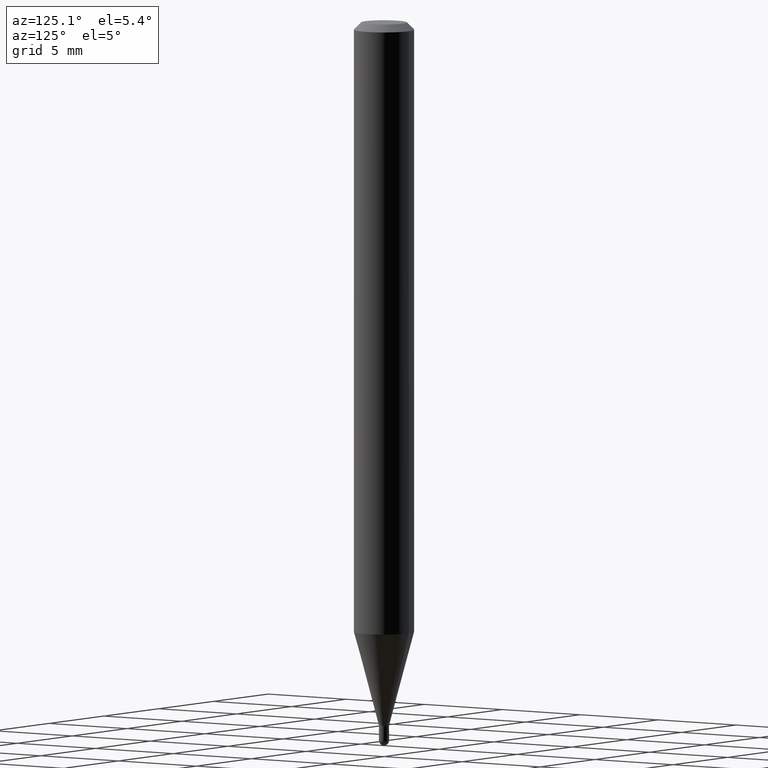
[diagram: clean part render]
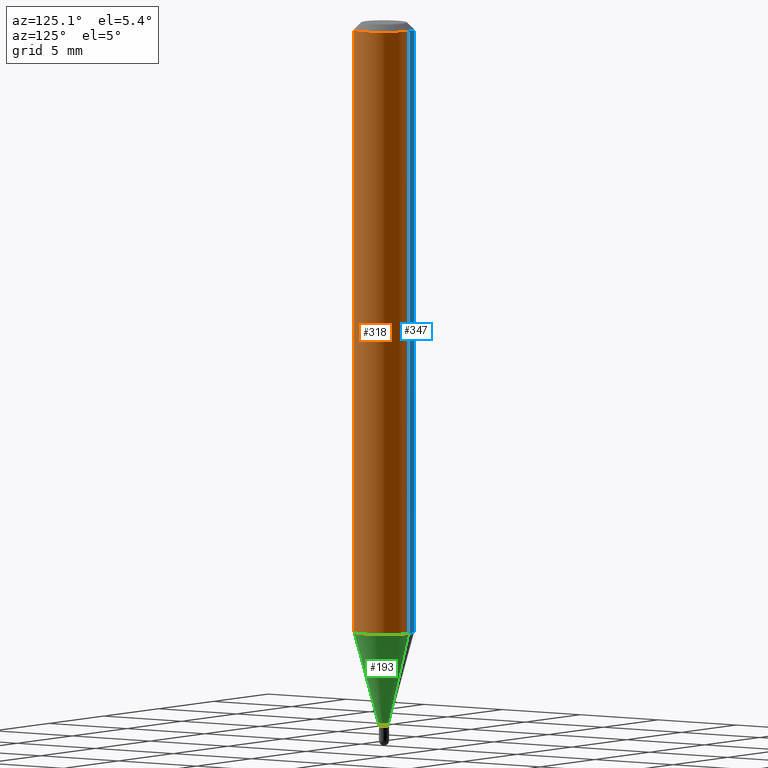
[diagram: same view with three faces highlighted in distinct colors, each labeled with its STEP entity id]
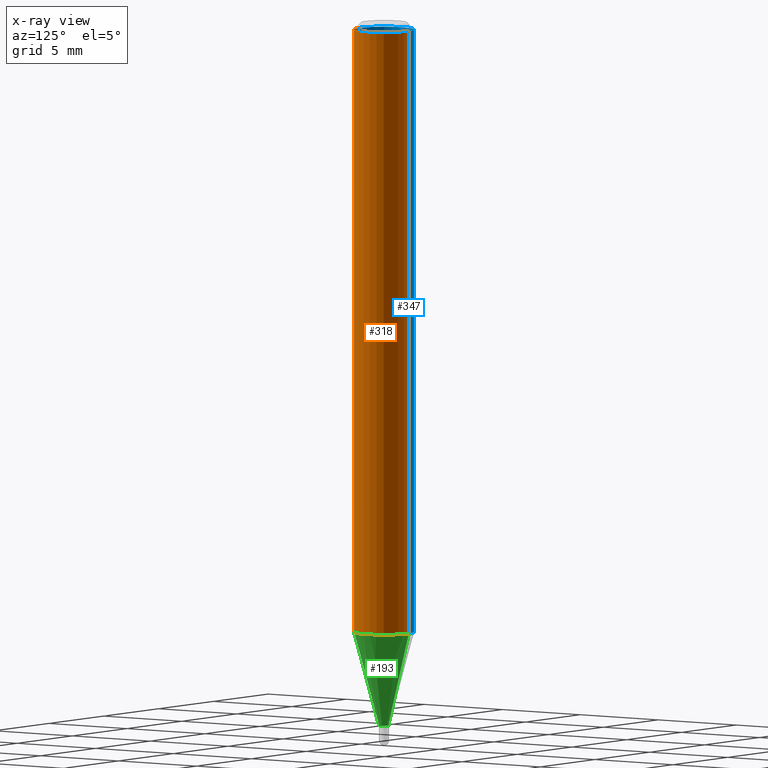
[diagram: x-ray of the same camera — body ghosted, the three highlighted faces saturated]
A machine part, auxiliary view with three faces highlighted in distinct colors.
The next image is the same camera in x-ray (body ghosted, the three faces saturated) — at least one of them is partly hidden behind the body in this view.
Their STEP definitions:

[orange] entity #318 — the highlighted cylindrical surface (edge-blend (fillet) strip) has radius 1.5875 mm, axis along (-0, 0, 1).
#33 = DIRECTION ( 'NONE',  ( -2.445454255719101212E-29, 3.491502175938669574E-15, 1.000000000000000000 ) ) ;
#36 = VERTEX_POINT ( 'NONE', #52 ) ;
#48 = VERTEX_POINT ( 'NONE', #242 ) ;
#52 = CARTESIAN_POINT ( 'NONE',  ( -4.364351673553912750E-16, -0.06250000000000005551, -0.01499999999999979128 ) ) ;
#57 = CARTESIAN_POINT ( 'NONE',  ( 4.440892098500936776E-16, 0.06249999999999993755, -0.01500000000000022669 ) ) ;
#72 = ORIENTED_EDGE ( 'NONE', *, *, #189, .F. ) ;
#77 = EDGE_LOOP ( 'NONE', ( #368, #231, #144, #72 ) ) ;
#83 = DIRECTION ( 'NONE',  ( -2.445454255719101212E-29, 3.491502175938669574E-15, 1.000000000000000000 ) ) ;
#114 = DIRECTION ( 'NONE',  ( -2.445454255719101212E-29, 3.491502175938669574E-15, 1.000000000000000000 ) ) ;
#119 = LINE ( 'NONE', #477, #492 ) ;
#122 = LINE ( 'NONE', #392, #277 ) ;
#144 = ORIENTED_EDGE ( 'NONE', *, *, #384, .F. ) ;
#160 = CARTESIAN_POINT ( 'NONE',  ( 0.000000000000000000, 0.000000000000000000, 0.000000000000000000 ) ) ;
#178 = DIRECTION ( 'NONE',  ( -2.445454255719101212E-29, 3.491502175938669574E-15, 1.000000000000000000 ) ) ;
#186 = AXIS2_PLACEMENT_3D ( 'NONE', #217, #289, #376 ) ;
#189 = EDGE_CURVE ( 'NONE', #221, #36, #122, .T. ) ;
#202 = FACE_OUTER_BOUND ( 'NONE', #77, .T. ) ;
#210 = CARTESIAN_POINT ( 'NONE',  ( 3.668181383578653902E-31, -5.237253263908007368E-17, -0.01500000000000000812 ) ) ;
#217 = CARTESIAN_POINT ( 'NONE',  ( 3.090891209282131815E-29, -4.413026069720881055E-15, -1.263933358006419150 ) ) ;
#221 = VERTEX_POINT ( 'NONE', #276 ) ;
#231 = ORIENTED_EDGE ( 'NONE', *, *, #310, .T. ) ;
#242 = CARTESIAN_POINT ( 'NONE',  ( 4.440892098500932831E-16, 0.06249999999999556605, -1.263933358006419372 ) ) ;
#276 = CARTESIAN_POINT ( 'NONE',  ( -4.364351673553607559E-16, -0.06250000000000441314, -1.263933358006418706 ) ) ;
#277 = VECTOR ( 'NONE', #33, 39.37007874015748143 ) ;
#289 = DIRECTION ( 'NONE',  ( -2.445454255719101212E-29, 3.491502175938669574E-15, 1.000000000000000000 ) ) ;
#291 = AXIS2_PLACEMENT_3D ( 'NONE', #160, #114, #480 ) ;
#310 = EDGE_CURVE ( 'NONE', #48, #400, #119, .T. ) ;
#318 = ADVANCED_FACE ( 'NONE', ( #202 ), #471, .T. ) ;
#327 = DIRECTION ( 'NONE',  ( -6.982962677686265922E-15, -1.000000000000000000, 3.483106191921935554E-15 ) ) ;
#358 = CIRCLE ( 'NONE', #382, 0.06250000000000000000 ) ;
#368 = ORIENTED_EDGE ( 'NONE', *, *, #453, .T. ) ;
#376 = DIRECTION ( 'NONE',  ( -6.982962677686265922E-15, -1.000000000000000000, 4.370956789862821150E-15 ) ) ;
#382 = AXIS2_PLACEMENT_3D ( 'NONE', #210, #178, #327 ) ;
#384 = EDGE_CURVE ( 'NONE', #36, #400, #358, .T. ) ;
#392 = CARTESIAN_POINT ( 'NONE',  ( -4.364351673553916201E-16, -0.06250000000000000000, 2.182188859961668483E-16 ) ) ;
#400 = VERTEX_POINT ( 'NONE', #57 ) ;
#453 = EDGE_CURVE ( 'NONE', #221, #48, #474, .T. ) ;
#471 = CYLINDRICAL_SURFACE ( 'NONE', #291, 0.06250000000000000000 ) ;
#474 = CIRCLE ( 'NONE', #186, 0.06250000000000000000 ) ;
#477 = CARTESIAN_POINT ( 'NONE',  ( 4.440892098500625669E-16, 0.06250000000000000000, -2.182188859961668483E-16 ) ) ;
#480 = DIRECTION ( 'NONE',  ( -6.982962677686265922E-15, -1.000000000000000000, 3.491502175938669574E-15 ) ) ;
#492 = VECTOR ( 'NONE', #83, 39.37007874015748143 ) ;

[blue] entity #347 — the highlighted cylindrical surface (edge-blend (fillet) strip) has radius 1.5875 mm, axis along (-0, 0, 1).
#12 = DIRECTION ( 'NONE',  ( -6.982962677686265922E-15, -1.000000000000000000, 3.483106191921935554E-15 ) ) ;
#20 = DIRECTION ( 'NONE',  ( -2.445454255719101212E-29, 3.491502175938669574E-15, 1.000000000000000000 ) ) ;
#33 = DIRECTION ( 'NONE',  ( -2.445454255719101212E-29, 3.491502175938669574E-15, 1.000000000000000000 ) ) ;
#36 = VERTEX_POINT ( 'NONE', #52 ) ;
#39 = DIRECTION ( 'NONE',  ( -2.445454255719101212E-29, 3.491502175938669574E-15, 1.000000000000000000 ) ) ;
#43 = AXIS2_PLACEMENT_3D ( 'NONE', #129, #20, #12 ) ;
#48 = VERTEX_POINT ( 'NONE', #242 ) ;
#50 = CIRCLE ( 'NONE', #307, 0.06250000000000000000 ) ;
#52 = CARTESIAN_POINT ( 'NONE',  ( -4.364351673553912750E-16, -0.06250000000000005551, -0.01499999999999979128 ) ) ;
#54 = FACE_OUTER_BOUND ( 'NONE', #162, .T. ) ;
#57 = CARTESIAN_POINT ( 'NONE',  ( 4.440892098500936776E-16, 0.06249999999999993755, -0.01500000000000022669 ) ) ;
#74 = ORIENTED_EDGE ( 'NONE', *, *, #310, .F. ) ;
#79 = DIRECTION ( 'NONE',  ( -6.982962677686265922E-15, -1.000000000000000000, 4.370956789862821150E-15 ) ) ;
#83 = DIRECTION ( 'NONE',  ( -2.445454255719101212E-29, 3.491502175938669574E-15, 1.000000000000000000 ) ) ;
#94 = CYLINDRICAL_SURFACE ( 'NONE', #317, 0.06250000000000000000 ) ;
#119 = LINE ( 'NONE', #477, #492 ) ;
#122 = LINE ( 'NONE', #392, #277 ) ;
#129 = CARTESIAN_POINT ( 'NONE',  ( 3.668181383578653902E-31, -5.237253263908007368E-17, -0.01500000000000000812 ) ) ;
#137 = CIRCLE ( 'NONE', #43, 0.06250000000000000000 ) ;
#162 = EDGE_LOOP ( 'NONE', ( #74, #191, #197, #393 ) ) ;
#189 = EDGE_CURVE ( 'NONE', #221, #36, #122, .T. ) ;
#191 = ORIENTED_EDGE ( 'NONE', *, *, #227, .T. ) ;
#197 = ORIENTED_EDGE ( 'NONE', *, *, #189, .T. ) ;
#215 = DIRECTION ( 'NONE',  ( -2.445454255719101212E-29, 3.491502175938669574E-15, 1.000000000000000000 ) ) ;
#221 = VERTEX_POINT ( 'NONE', #276 ) ;
#227 = EDGE_CURVE ( 'NONE', #48, #221, #50, .T. ) ;
#242 = CARTESIAN_POINT ( 'NONE',  ( 4.440892098500932831E-16, 0.06249999999999556605, -1.263933358006419372 ) ) ;
#246 = CARTESIAN_POINT ( 'NONE',  ( 3.090891209282131815E-29, -4.413026069720881055E-15, -1.263933358006419150 ) ) ;
#276 = CARTESIAN_POINT ( 'NONE',  ( -4.364351673553607559E-16, -0.06250000000000441314, -1.263933358006418706 ) ) ;
#277 = VECTOR ( 'NONE', #33, 39.37007874015748143 ) ;
#307 = AXIS2_PLACEMENT_3D ( 'NONE', #246, #39, #79 ) ;
#310 = EDGE_CURVE ( 'NONE', #48, #400, #119, .T. ) ;
#317 = AXIS2_PLACEMENT_3D ( 'NONE', #450, #215, #329 ) ;
#329 = DIRECTION ( 'NONE',  ( -6.982962677686265922E-15, -1.000000000000000000, 3.491502175938669574E-15 ) ) ;
#347 = ADVANCED_FACE ( 'NONE', ( #54 ), #94, .T. ) ;
#392 = CARTESIAN_POINT ( 'NONE',  ( -4.364351673553916201E-16, -0.06250000000000000000, 2.182188859961668483E-16 ) ) ;
#393 = ORIENTED_EDGE ( 'NONE', *, *, #444, .F. ) ;
#400 = VERTEX_POINT ( 'NONE', #57 ) ;
#444 = EDGE_CURVE ( 'NONE', #400, #36, #137, .T. ) ;
#450 = CARTESIAN_POINT ( 'NONE',  ( 0.000000000000000000, 0.000000000000000000, 0.000000000000000000 ) ) ;
#477 = CARTESIAN_POINT ( 'NONE',  ( 4.440892098500625669E-16, 0.06250000000000000000, -2.182188859961668483E-16 ) ) ;
#492 = VECTOR ( 'NONE', #83, 39.37007874015748143 ) ;

[green] entity #193 — the highlighted conical surface has half-angle 15 deg.
#14 = ORIENTED_EDGE ( 'NONE', *, *, #253, .T. ) ;
#18 = ORIENTED_EDGE ( 'NONE', *, *, #453, .F. ) ;
#41 = CARTESIAN_POINT ( 'NONE',  ( 7.460698725484561614E-17, 0.01049999999999483465, -1.458000000000000185 ) ) ;
#48 = VERTEX_POINT ( 'NONE', #242 ) ;
#56 = CARTESIAN_POINT ( 'NONE',  ( 3.565472304838449860E-29, -5.090610172518580504E-15, -1.458000000000000185 ) ) ;
#68 = ORIENTED_EDGE ( 'NONE', *, *, #486, .F. ) ;
#96 = AXIS2_PLACEMENT_3D ( 'NONE', #56, #274, #249 ) ;
#161 = VERTEX_POINT ( 'NONE', #424 ) ;
#163 = CARTESIAN_POINT ( 'NONE',  ( 3.565472304838449860E-29, -5.090610172518580504E-15, -1.458000000000000185 ) ) ;
#186 = AXIS2_PLACEMENT_3D ( 'NONE', #217, #289, #376 ) ;
#193 = ADVANCED_FACE ( 'NONE', ( #306 ), #396, .T. ) ;
#201 = VECTOR ( 'NONE', #312, 39.37007874015748854 ) ;
#217 = CARTESIAN_POINT ( 'NONE',  ( 3.090891209282131815E-29, -4.413026069720881055E-15, -1.263933358006419150 ) ) ;
#221 = VERTEX_POINT ( 'NONE', #276 ) ;
#230 = ORIENTED_EDGE ( 'NONE', *, *, #286, .T. ) ;
#233 = VERTEX_POINT ( 'NONE', #238 ) ;
#238 = CARTESIAN_POINT ( 'NONE',  ( 2.593480985524697824E-16, 0.01049999999999483465, -1.458000000000000185 ) ) ;
#242 = CARTESIAN_POINT ( 'NONE',  ( 4.440892098500932831E-16, 0.06249999999999556605, -1.263933358006419372 ) ) ;
#249 = DIRECTION ( 'NONE',  ( -6.982962677686266711E-15, -1.000000000000000000, 0.000000000000000000 ) ) ;
#253 = EDGE_CURVE ( 'NONE', #161, #233, #511, .T. ) ;
#255 = LINE ( 'NONE', #293, #430 ) ;
#273 = EDGE_LOOP ( 'NONE', ( #14, #230, #18, #68 ) ) ;
#274 = DIRECTION ( 'NONE',  ( -2.445454255719101212E-29, 3.491502175938669574E-15, 1.000000000000000000 ) ) ;
#276 = CARTESIAN_POINT ( 'NONE',  ( -4.364351673553607559E-16, -0.06250000000000441314, -1.263933358006418706 ) ) ;
#286 = EDGE_CURVE ( 'NONE', #233, #48, #401, .T. ) ;
#289 = DIRECTION ( 'NONE',  ( -2.445454255719101212E-29, 3.491502175938669574E-15, 1.000000000000000000 ) ) ;
#293 = CARTESIAN_POINT ( 'NONE',  ( -7.332110811566961097E-17, -0.01050000000000501574, -1.458000000000000185 ) ) ;
#306 = FACE_OUTER_BOUND ( 'NONE', #273, .T. ) ;
#312 = DIRECTION ( 'NONE',  ( 1.839019923739601499E-15, 0.2588190451025251249, 0.9659258262890670910 ) ) ;
#364 = DIRECTION ( 'NONE',  ( -6.982962677686266711E-15, -1.000000000000000000, 0.000000000000000000 ) ) ;
#376 = DIRECTION ( 'NONE',  ( -6.982962677686265922E-15, -1.000000000000000000, 4.370956789862821150E-15 ) ) ;
#396 = CONICAL_SURFACE ( 'NONE', #96, 0.01049999999999992432, 0.2617993877991504625 ) ;
#401 = LINE ( 'NONE', #41, #201 ) ;
#416 = DIRECTION ( 'NONE',  ( -1.807323732225331323E-15, -0.2588190451025183525, 0.9659258262890689783 ) ) ;
#424 = CARTESIAN_POINT ( 'NONE',  ( -7.332110811566961097E-17, -0.01050000000000501574, -1.458000000000000185 ) ) ;
#430 = VECTOR ( 'NONE', #416, 39.37007874015748854 ) ;
#453 = EDGE_CURVE ( 'NONE', #221, #48, #474, .T. ) ;
#468 = AXIS2_PLACEMENT_3D ( 'NONE', #163, #505, #364 ) ;
#474 = CIRCLE ( 'NONE', #186, 0.06250000000000000000 ) ;
#486 = EDGE_CURVE ( 'NONE', #161, #221, #255, .T. ) ;
#505 = DIRECTION ( 'NONE',  ( -2.445454255719101212E-29, 3.491502175938669574E-15, 1.000000000000000000 ) ) ;
#511 = CIRCLE ( 'NONE', #468, 0.01049999999999992432 ) ;